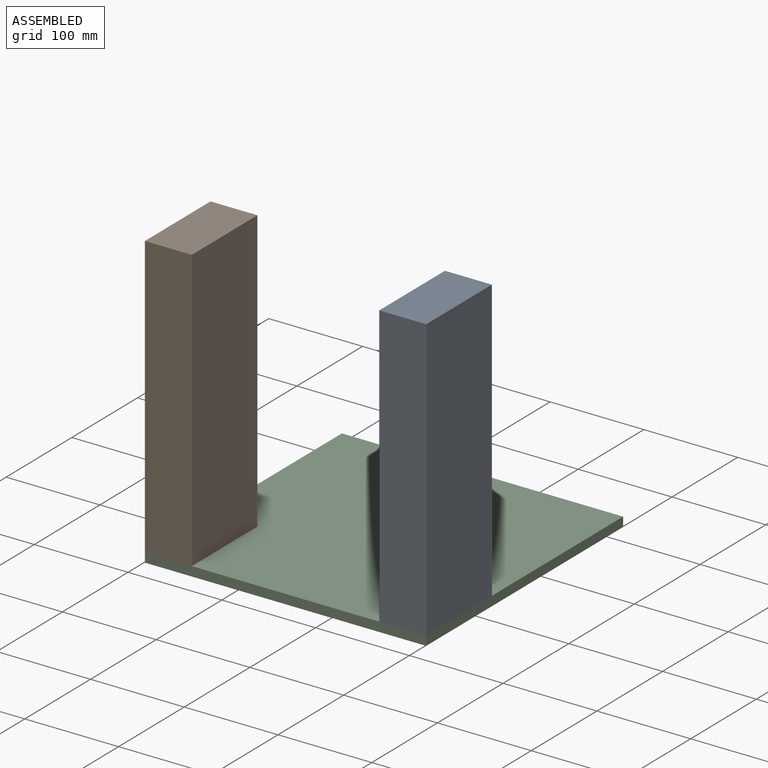
[diagram: assembled view]
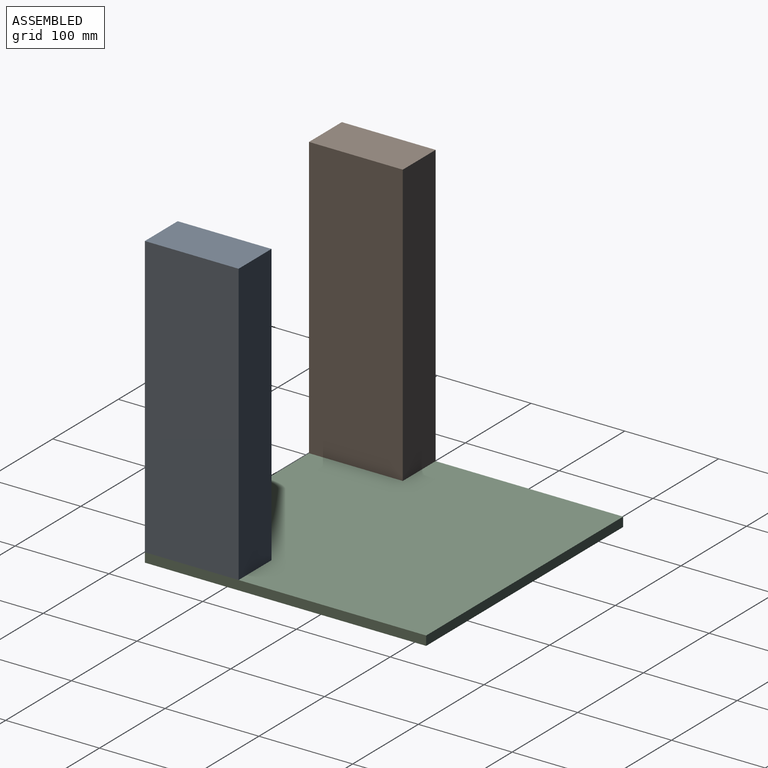
[diagram: assembled view, second angle]
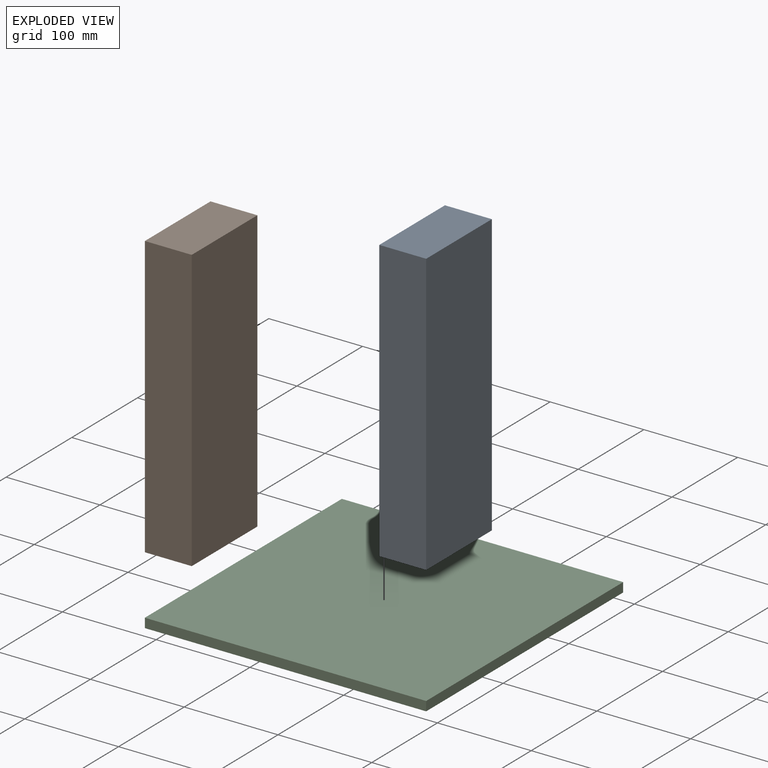
[diagram: exploded view]
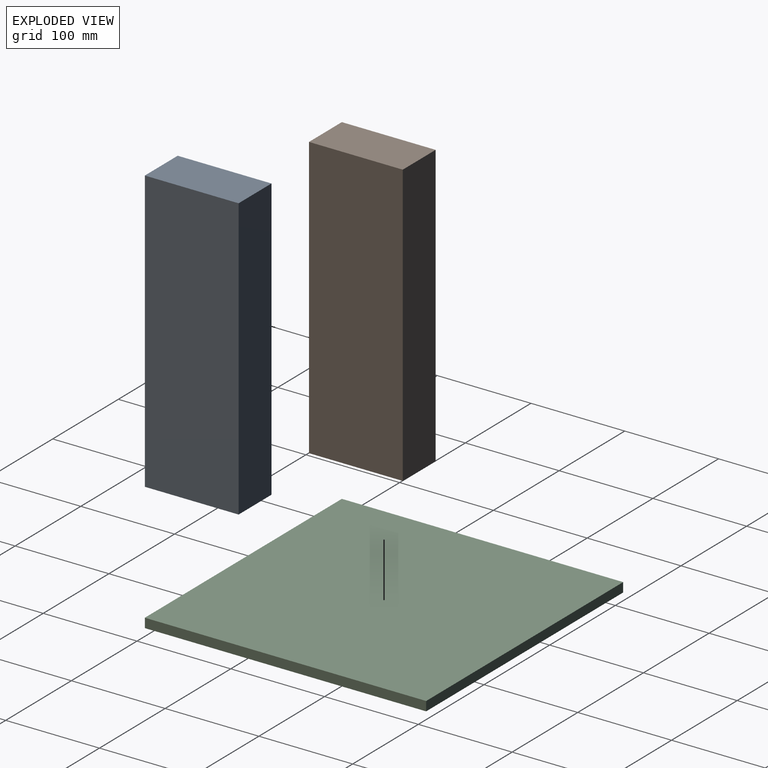
[diagram: exploded view, second angle]
ASSEMBLY  parts=3 mates=2
PART A: 6 faces, bbox 50x100x300 mm
  f0: plane 300x50mm, normal (0,1,0), area 15000mm2, adj f1,f3,f4,f5
  f1: plane 300x100mm, normal (-1,0,0), area 30000mm2, adj f0,f2,f4,f5
  f2: plane 300x50mm, normal (0,-1,0), area 15000mm2, adj f1,f3,f4,f5
  f3: plane 300x100mm, normal (1,0,0), area 30000mm2, adj f0,f2,f4,f5
  f4: plane 100x50mm, normal (0,0,1), area 5000mm2, adj f0,f1,f2,f3
  f5: plane 100x50mm, normal (0,0,-1), area 5000mm2, adj f0,f1,f2,f3
PART B: same geometry as A
PART C: 6 faces, bbox 300x300x10 mm
  f0: plane 300x10mm, normal (0,1,0), area 3000mm2, adj f1,f3,f4,f5
  f1: plane 300x10mm, normal (-1,0,0), area 3000mm2, adj f0,f2,f4,f5
  f2: plane 300x10mm, normal (0,-1,0), area 3000mm2, adj f1,f3,f4,f5
  f3: plane 300x10mm, normal (1,0,0), area 3000mm2, adj f0,f2,f4,f5
  f4: plane 300x300mm, normal (0,0,1), area 90000mm2, adj f0,f1,f2,f3
  f5: plane 300x300mm, normal (0,0,-1), area 90000mm2, adj f0,f1,f2,f3
PLACE A t=(138,0,0)mm
PLACE B t=(-112,0,0)mm
PLACE C t=(-216.56,0,-10)mm
MATE fastened C.f4 <-> B.f5  axis (0,0,1) through (-112,0,0)mm
MATE fastened A.f5 <-> C.f4  axis (0,0,-1) through (188,0,0)mm
